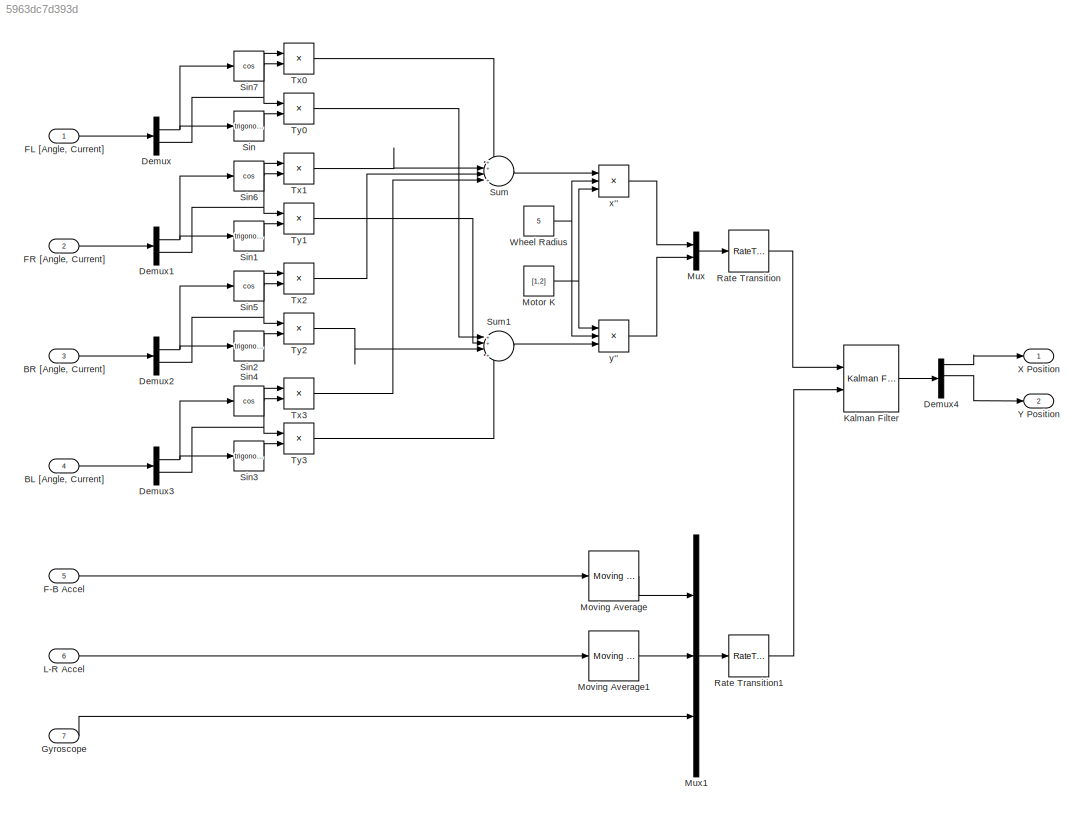
MODEL slx_5963dc7d393d
KIND model
CONFIG AbsTol = auto
CONFIG EnableMultiTasking = off
CONFIG FixedStep = auto
CONFIG MaxStep = auto
CONFIG MinStep = auto
CONFIG RelTol = 1e-3
CONFIG SampleTimeConstraint = Unconstrained
CONFIG Solver = VariableStepAuto
CONFIG SolverName = VariableStepAuto
CONFIG StartTime = 0.0
CONFIG StopTime = 10.0
BLOCK [Inport] BL [Angle, Current]
  IconDisplay = Port number
  Port = 4
BLOCK [Inport] BR [Angle, Current]
  IconDisplay = Port number
  Port = 3
BLOCK [Demux] Demux
  DisplayOption = bar
  Outputs = 2
  Ports = [1, 2]
BLOCK [Demux] Demux1
  DisplayOption = bar
  Outputs = 2
  Ports = [1, 2]
BLOCK [Demux] Demux2
  DisplayOption = bar
  Outputs = 2
  Ports = [1, 2]
BLOCK [Demux] Demux3
  DisplayOption = bar
  Outputs = 2
  Ports = [1, 2]
BLOCK [Demux] Demux4
  DisplayOption = bar
  Outputs = 6
  Ports = [1, 6]
BLOCK [Inport] F-B Accel
  IconDisplay = Port number
  Port = 5
BLOCK [Inport] FL [Angle, Current]
  IconDisplay = Port number
BLOCK [Inport] FR [Angle, Current]
  IconDisplay = Port number
  Port = 2
BLOCK [Inport] Gyroscope
  IconDisplay = Port number
  Port = 7
BLOCK [Reference] Kalman Filter  REF=ctrlSharedLib/Kalman Filter
  Ports = [2, 1]
  SourceBlock = ctrlSharedLib/Kalman Filter
  SourceType = ctrlKalmanFilter
BLOCK [Inport] L-R Accel
  IconDisplay = Port number
  Port = 6
BLOCK [Constant] Motor K
  Value = [1,2]
BLOCK [Reference] Moving Average  REF=dspstat3/Moving
Average
  Ports = [1, 1]
  SourceBlock = dspstat3/Moving\nAverage
  SourceProductBaseCode = DS
  SourceProductName = DSP System Toolbox
  SourceType = dsp.MovingAverage
BLOCK [Reference] Moving Average1  REF=dspstat3/Moving
Average
  Ports = [1, 1]
  SourceBlock = dspstat3/Moving\nAverage
  SourceProductBaseCode = DS
  SourceProductName = DSP System Toolbox
  SourceType = dsp.MovingAverage
BLOCK [Mux] Mux
  DisplayOption = bar
  Inputs = 2
  Ports = [2, 1]
BLOCK [Mux] Mux1
  DisplayOption = bar
  Inputs = 3
  Ports = [3, 1]
BLOCK [RateTransition] Rate Transition
  OutPortSampleTime = [0.002,0]
BLOCK [RateTransition] Rate Transition1
  OutPortSampleTime = [0.002,0]
BLOCK [Trigonometry] Sin
  Ports = [1, 1]
BLOCK [Trigonometry] Sin1
  Ports = [1, 1]
BLOCK [Trigonometry] Sin2
  Ports = [1, 1]
BLOCK [Trigonometry] Sin3
  Ports = [1, 1]
BLOCK [Trigonometry] Sin4
  Operator = cos
  Ports = [1, 1]
BLOCK [Trigonometry] Sin5
  Operator = cos
  Ports = [1, 1]
BLOCK [Trigonometry] Sin6
  Operator = cos
  Ports = [1, 1]
BLOCK [Trigonometry] Sin7
  Operator = cos
  Ports = [1, 1]
BLOCK [Sum] Sum
  IconShape = round
  InputSameDT = off
  Inputs = ++|++
  OutDataTypeStr = Inherit: Inherit via internal rule
  Ports = [4, 1]
  SaturateOnIntegerOverflow = off
BLOCK [Sum] Sum1
  IconShape = round
  InputSameDT = off
  Inputs = ++|++
  OutDataTypeStr = Inherit: Inherit via internal rule
  Ports = [4, 1]
  SaturateOnIntegerOverflow = off
BLOCK [Product] Tx0
  InputSameDT = off
  OutDataTypeStr = Inherit: Inherit via internal rule
  Ports = [2, 1]
  RndMeth = Floor
  SaturateOnIntegerOverflow = off
BLOCK [Product] Tx1
  InputSameDT = off
  OutDataTypeStr = Inherit: Inherit via internal rule
  Ports = [2, 1]
  RndMeth = Floor
  SaturateOnIntegerOverflow = off
BLOCK [Product] Tx2
  InputSameDT = off
  OutDataTypeStr = Inherit: Inherit via internal rule
  Ports = [2, 1]
  RndMeth = Floor
  SaturateOnIntegerOverflow = off
BLOCK [Product] Tx3
  InputSameDT = off
  OutDataTypeStr = Inherit: Inherit via internal rule
  Ports = [2, 1]
  RndMeth = Floor
  SaturateOnIntegerOverflow = off
BLOCK [Product] Ty0
  InputSameDT = off
  OutDataTypeStr = Inherit: Inherit via internal rule
  Ports = [2, 1]
  RndMeth = Floor
  SaturateOnIntegerOverflow = off
BLOCK [Product] Ty1
  InputSameDT = off
  OutDataTypeStr = Inherit: Inherit via internal rule
  Ports = [2, 1]
  RndMeth = Floor
  SaturateOnIntegerOverflow = off
BLOCK [Product] Ty2
  InputSameDT = off
  OutDataTypeStr = Inherit: Inherit via internal rule
  Ports = [2, 1]
  RndMeth = Floor
  SaturateOnIntegerOverflow = off
BLOCK [Product] Ty3
  InputSameDT = off
  OutDataTypeStr = Inherit: Inherit via internal rule
  Ports = [2, 1]
  RndMeth = Floor
  SaturateOnIntegerOverflow = off
BLOCK [Constant] Wheel Radius
  Value = 5
BLOCK [Outport] X Position
  IconDisplay = Port number
BLOCK [Outport] Y Position
  IconDisplay = Port number
  Port = 2
BLOCK [Product] x''
  InputSameDT = off
  Inputs = 3
  OutDataTypeStr = Inherit: Inherit via internal rule
  Ports = [3, 1]
  RndMeth = Floor
  SaturateOnIntegerOverflow = off
BLOCK [Product] y''
  InputSameDT = off
  Inputs = 3
  OutDataTypeStr = Inherit: Inherit via internal rule
  Ports = [3, 1]
  RndMeth = Floor
  SaturateOnIntegerOverflow = off
LINE BL [Angle, Current]:1 -> Demux3:1
LINE BR [Angle, Current]:1 -> Demux2:1
NET Demux1:1 -> Sin1:1, Sin6:1
NET Demux1:2 -> Tx1:1, Ty1:1
NET Demux2:1 -> Sin2:1, Sin5:1
NET Demux2:2 -> Tx2:1, Ty2:1
NET Demux3:1 -> Sin3:1, Sin4:1
NET Demux3:2 -> Tx3:1, Ty3:1
LINE Demux4:1 -> X Position:1
LINE Demux4:3 -> Y Position:1
NET Demux:1 -> Sin7:1, Sin:1
NET Demux:2 -> Tx0:1, Ty0:1
LINE F-B Accel:1 -> Moving Average:1
LINE FL [Angle, Current]:1 -> Demux:1
LINE FR [Angle, Current]:1 -> Demux1:1
LINE Gyroscope:1 -> Mux1:3
LINE Kalman Filter:1 -> Demux4:1
LINE L-R Accel:1 -> Moving Average1:1
NET Motor K:1 -> x'':3, y'':1
LINE Moving Average1:1 -> Mux1:2
LINE Moving Average:1 -> Mux1:1
LINE Mux1:1 -> Rate Transition1:1
LINE Mux:1 -> Rate Transition:1
LINE Rate Transition1:1 -> Kalman Filter:2
LINE Rate Transition:1 -> Kalman Filter:1
LINE Sin1:1 -> Ty1:2
LINE Sin2:1 -> Ty2:2
LINE Sin3:1 -> Ty3:2
LINE Sin4:1 -> Tx3:2
LINE Sin5:1 -> Tx2:2
LINE Sin6:1 -> Tx1:2
LINE Sin7:1 -> Tx0:2
LINE Sin:1 -> Ty0:2
LINE Sum1:1 -> y'':3
LINE Sum:1 -> x'':1
LINE Tx0:1 -> Sum:1
LINE Tx1:1 -> Sum:2
LINE Tx2:1 -> Sum:3
LINE Tx3:1 -> Sum:4
LINE Ty0:1 -> Sum1:1
LINE Ty1:1 -> Sum1:2
LINE Ty2:1 -> Sum1:3
LINE Ty3:1 -> Sum1:4
NET Wheel Radius:1 -> x'':2, y'':2
LINE x'':1 -> Mux:1
LINE y'':1 -> Mux:2
note: NET lines group one-source signal fan-out (src -> all destinations, sorted); 1:1 wires keep LINE
